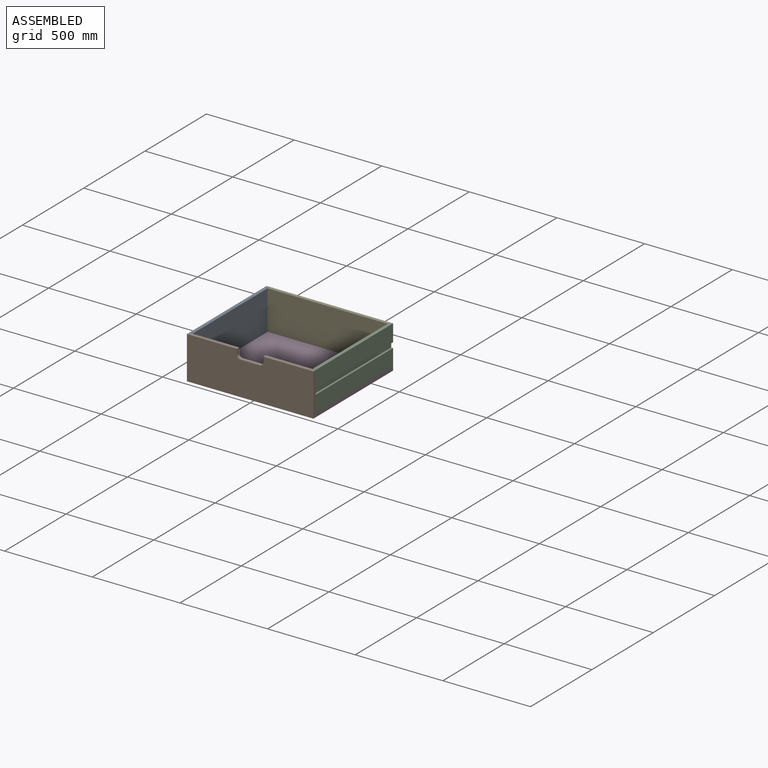
[diagram: assembled view]
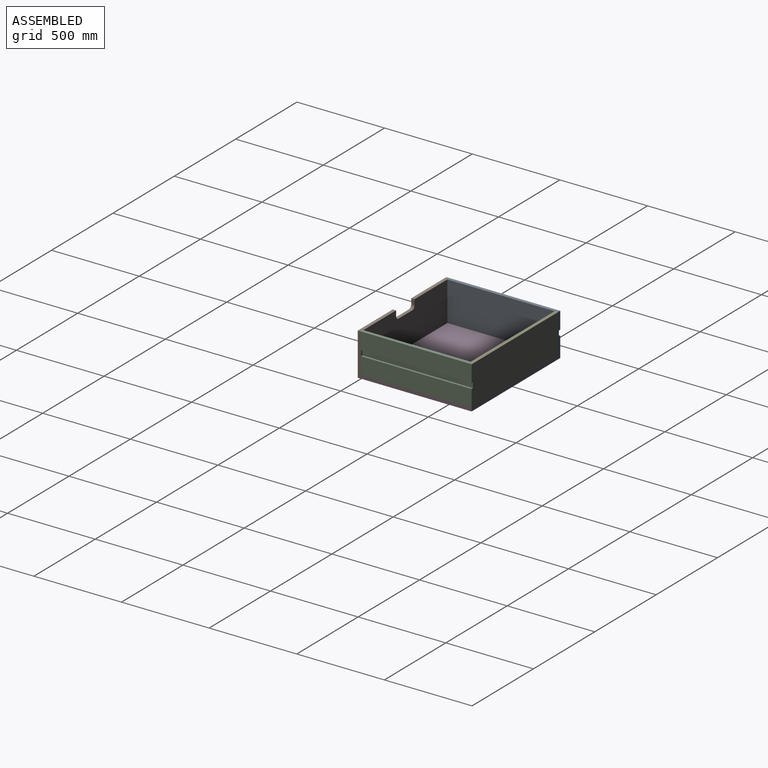
[diagram: assembled view, second angle]
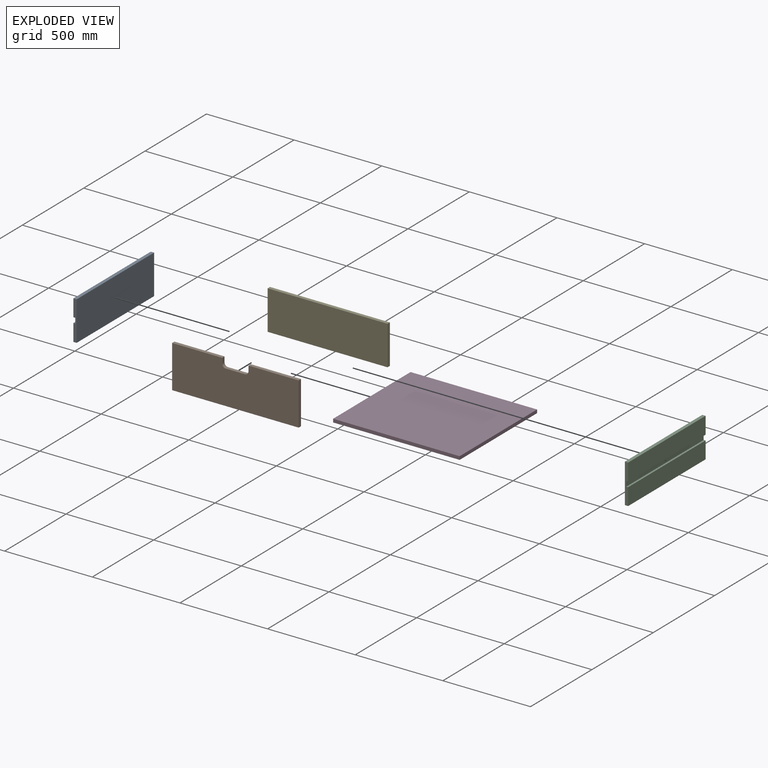
[diagram: exploded view]
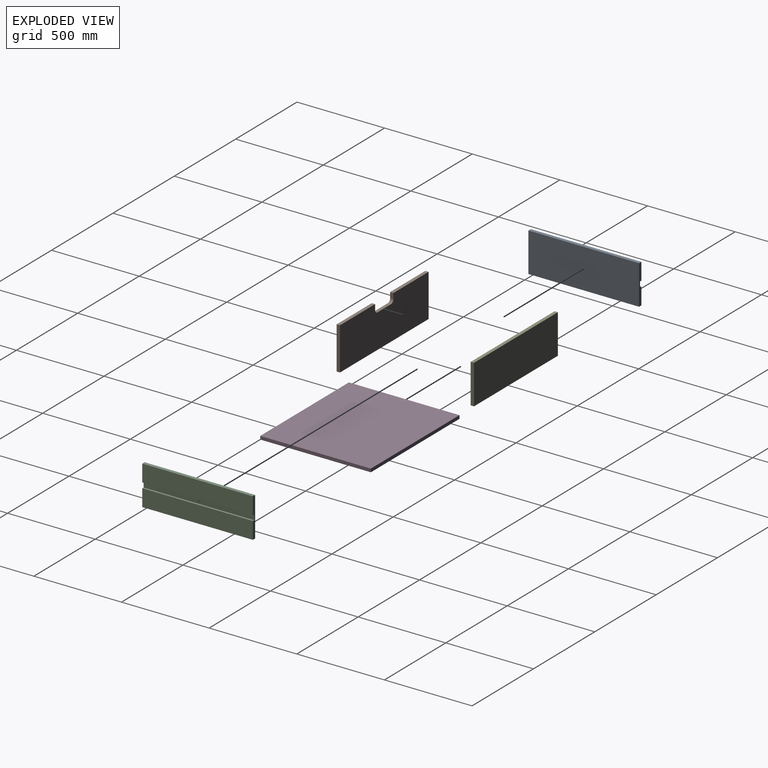
[diagram: exploded view, second angle]
ASSEMBLY  parts=5 mates=4
PART A: 10 faces, bbox 19x631x224.3 mm
  f0: plane 631x97.17mm, normal (-1,0,0), area 61312.2mm2, adj f1,f3,f6,f9
  f1: plane 224.33x19mm, normal (0,1,0), area 3932.3mm2, adj f0,f2,f3,f4,f5,f7,f8,f9
  f2: plane 631x224.33mm, normal (1,0,0), area 141554.3mm2, adj f1,f3,f5,f6
  f3: plane 631x19mm, normal (0,0,-1), area 11989mm2, adj f0,f1,f2,f6
  f4: plane 631x97.17mm, normal (-1,0,0), area 61312.2mm2, adj f1,f5,f6,f7
  f5: plane 631x19mm, normal (0,0,1), area 11989mm2, adj f1,f2,f4,f6
  f6: plane 224.33x19mm, normal (0,-1,0), area 3932.3mm2, adj f0,f2,f3,f4,f5,f7,f8,f9
  f7: plane 631x11mm, normal (0,0,-1), area 6941mm2, adj f1,f4,f6,f8
  f8: plane 631x30mm, normal (-1,0,0), area 18930mm2, adj f1,f6,f7,f9
  f9: plane 631x11mm, normal (0,0,1), area 6941mm2, adj f0,f1,f6,f8
PART B: 12 faces, bbox 722x19x243.3 mm
  f0: plane 286x19mm, normal (0,0,1), area 5434mm2, adj f3,f5,f6,f8
  f1: plane 243.33x19mm, normal (-1,0,0), area 4623.3mm2, adj f2,f4,f5,f6
  f2: plane 722x19mm, normal (0,0,-1), area 13718mm2, adj f1,f3,f5,f6
  f3: plane 243.33x19mm, normal (1,0,0), area 4623.3mm2, adj f0,f2,f5,f6
  f4: plane 286x19mm, normal (0,0,1), area 5434mm2, adj f1,f5,f6,f7
  f5: plane 722x243.33mm, normal (0,1,0), area 168358.3mm2, adj f0,f1,f2,f3,f4,f7,f8,f9
  f6: plane 722x243.33mm, normal (0,-1,0), area 168358.3mm2, adj f0,f1,f2,f3,f4,f7,f8,f9
  f7: plane 30x19mm, normal (1,0,0), area 570mm2, adj f4,f5,f6,f9
  f8: plane 30x19mm, normal (-1,0,0), area 570mm2, adj f0,f5,f6,f11
  f9: cylinder r=20mm len=20mm, axis (0,-1,0), area 596.9mm2, adj f5,f6,f7,f10
  f10: plane 110x19mm, normal (0,0,1), area 2090mm2, adj f5,f6,f9,f11
  f11: cylinder r=20mm len=20mm, axis (0,-1,0), area 596.9mm2, adj f5,f6,f8,f10
PART C: same geometry as A
PART D: 6 faces, bbox 722x631x19 mm
  f0: plane 722x19mm, normal (0,1,0), area 13718mm2, adj f1,f2,f3,f4
  f1: plane 722x631mm, normal (0,0,-1), area 455582mm2, adj f0,f2,f4,f5
  f2: plane 631x19mm, normal (-1,0,0), area 11989mm2, adj f0,f1,f3,f5
  f3: plane 722x631mm, normal (0,0,1), area 455582mm2, adj f0,f2,f4,f5
  f4: plane 631x19mm, normal (1,0,0), area 11989mm2, adj f0,f1,f3,f5
  f5: plane 722x19mm, normal (0,-1,0), area 13718mm2, adj f1,f2,f3,f4
PART E: 6 faces, bbox 684x19x224.3 mm
  f0: plane 684x19mm, normal (0,0,1), area 12996mm2, adj f1,f3,f4,f5
  f1: plane 224.33x19mm, normal (1,0,0), area 4262.3mm2, adj f0,f2,f4,f5
  f2: plane 684x19mm, normal (0,0,-1), area 12996mm2, adj f1,f3,f4,f5
  f3: plane 224.33x19mm, normal (-1,0,0), area 4262.3mm2, adj f0,f2,f4,f5
  f4: plane 684x224.33mm, normal (0,-1,0), area 153444mm2, adj f0,f1,f2,f3
  f5: plane 684x224.33mm, normal (0,1,0), area 153444mm2, adj f0,f1,f2,f3
PLACE A t=(0,650,-647.1)mm
PLACE B t=(0,650,-647.1)mm
PLACE C rot(axis=(0,0,1),180deg) t=(0,19,-647.1)mm
PLACE D t=(0,650,-647.1)mm
PLACE E t=(0,650,-647.1)mm
MATE fastened E.f5 <-> A.f1  axis (0,1,0) through (-342,650,-98.44)mm
MATE fastened D.f5 <-> B.f5  axis (0,-1,0) through (361,19,-117.44)mm
MATE fastened A.f0 <-> D.f2  axis (-1,0,0) through (-361,19,-98.44)mm
MATE fastened C.f2 <-> E.f1  axis (-1,0,0) through (342,650,-98.44)mm
